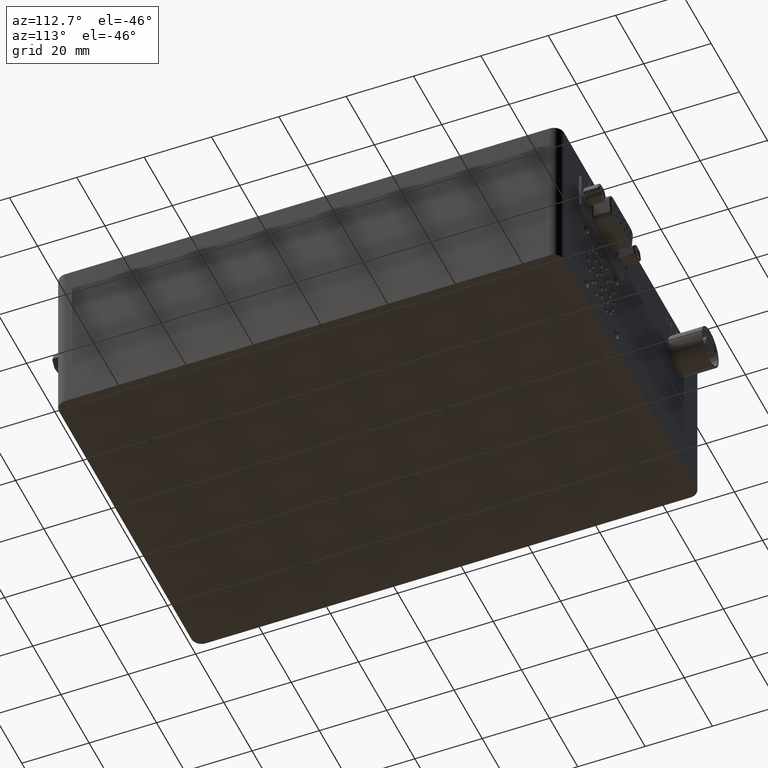
[diagram: clean part render]
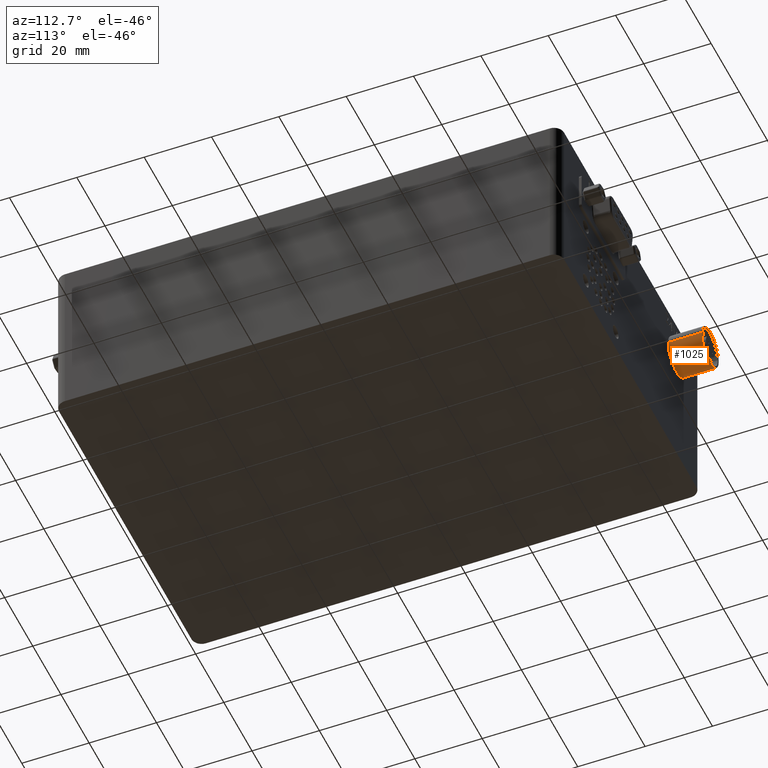
[diagram: same view with one face highlighted and labeled with its STEP entity id]
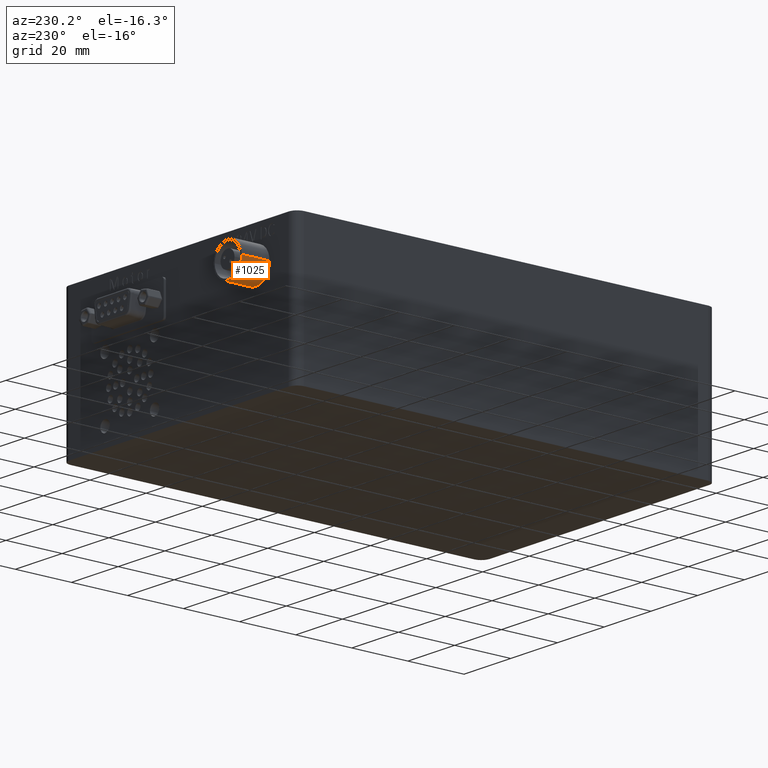
[diagram: same view with one face highlighted and labeled with its STEP entity id]
A machine part, auxiliary view. The second image highlights one B-rep face of the part: STEP entity #1025.
A second angle (auxiliary view) of the same face is appended — the face is thin or edge-on in the first view.
In plain terms, the highlighted cylindrical surface (edge-blend (fillet) strip) has radius 6 mm, axis along (0, -1, 0).
Its self-contained STEP definition (entity closure, byte-faithful):
#1025 = ADVANCED_FACE ( 'NONE', ( #10778 ), #23933, .T. ) ;
#5300 = CARTESIAN_POINT ( 'NONE',  ( 17.16960698378106187, 150.0000000000000000, -12.25554380068579619 ) ) ;
#5926 = CIRCLE ( 'NONE', #31105, 6.000000000000000000 ) ;
#6531 = AXIS2_PLACEMENT_3D ( 'NONE', #5300, #9107, #49385 ) ;
#7058 = AXIS2_PLACEMENT_3D ( 'NONE', #41726, #19544, #42294 ) ;
#7248 = CARTESIAN_POINT ( 'NONE',  ( 11.16960698378106009, 160.0000000000000000, -12.25554380068579619 ) ) ;
#9107 = DIRECTION ( 'NONE',  ( 0.000000000000000000, 1.000000000000000000, 0.000000000000000000 ) ) ;
#9382 = EDGE_CURVE ( 'NONE', #31894, #57725, #37629, .T. ) ;
#9651 = DIRECTION ( 'NONE',  ( -1.000000000000000000, 0.000000000000000000, 0.000000000000000000 ) ) ;
#9901 = ORIENTED_EDGE ( 'NONE', *, *, #24891, .F. ) ;
#10248 = EDGE_CURVE ( 'NONE', #18589, #57725, #22377, .T. ) ;
#10618 = VERTEX_POINT ( 'NONE', #54214 ) ;
#10778 = FACE_OUTER_BOUND ( 'NONE', #30120, .T. ) ;
#13877 = EDGE_CURVE ( 'NONE', #10618, #18589, #36570, .T. ) ;
#16748 = VECTOR ( 'NONE', #55420, 1000.000000000000000 ) ;
#18589 = VERTEX_POINT ( 'NONE', #51949 ) ;
#19544 = DIRECTION ( 'NONE',  ( 0.000000000000000000, -1.000000000000000000, 0.000000000000000000 ) ) ;
#22377 = CIRCLE ( 'NONE', #6531, 6.000000000000000000 ) ;
#23606 = CARTESIAN_POINT ( 'NONE',  ( 11.16960698378106009, 150.0000000000000000, -12.25554380068579619 ) ) ;
#23933 = CYLINDRICAL_SURFACE ( 'NONE', #7058, 5.999999999999998224 ) ;
#24395 = VECTOR ( 'NONE', #57564, 1000.000000000000000 ) ;
#24891 = EDGE_CURVE ( 'NONE', #10618, #31894, #5926, .T. ) ;
#30120 = EDGE_LOOP ( 'NONE', ( #53740, #9901, #57099, #35805 ) ) ;
#31105 = AXIS2_PLACEMENT_3D ( 'NONE', #46128, #32139, #9651 ) ;
#31894 = VERTEX_POINT ( 'NONE', #46850 ) ;
#32139 = DIRECTION ( 'NONE',  ( 0.000000000000000000, 1.000000000000000000, 0.000000000000000000 ) ) ;
#35805 = ORIENTED_EDGE ( 'NONE', *, *, #10248, .T. ) ;
#36570 = LINE ( 'NONE', #54353, #24395 ) ;
#37629 = LINE ( 'NONE', #7248, #16748 ) ;
#41726 = CARTESIAN_POINT ( 'NONE',  ( 17.16960698378106187, 160.0000000000000000, -12.25554380068579619 ) ) ;
#42294 = DIRECTION ( 'NONE',  ( 1.000000000000000000, 0.000000000000000000, 0.000000000000000000 ) ) ;
#46128 = CARTESIAN_POINT ( 'NONE',  ( 17.16960698378106187, 160.0000000000000000, -12.25554380068579619 ) ) ;
#46850 = CARTESIAN_POINT ( 'NONE',  ( 11.16960698378106009, 160.0000000000000000, -12.25554380068579619 ) ) ;
#49385 = DIRECTION ( 'NONE',  ( -1.000000000000000000, 0.000000000000000000, 0.000000000000000000 ) ) ;
#51949 = CARTESIAN_POINT ( 'NONE',  ( 23.16960698378105832, 150.0000000000000000, -12.25554380068579619 ) ) ;
#53740 = ORIENTED_EDGE ( 'NONE', *, *, #9382, .F. ) ;
#54214 = CARTESIAN_POINT ( 'NONE',  ( 23.16960698378105832, 160.0000000000000000, -12.25554380068579619 ) ) ;
#54353 = CARTESIAN_POINT ( 'NONE',  ( 23.16960698378105832, 160.0000000000000000, -12.25554380068579619 ) ) ;
#55420 = DIRECTION ( 'NONE',  ( 0.000000000000000000, -1.000000000000000000, 0.000000000000000000 ) ) ;
#57099 = ORIENTED_EDGE ( 'NONE', *, *, #13877, .T. ) ;
#57564 = DIRECTION ( 'NONE',  ( 0.000000000000000000, -1.000000000000000000, 0.000000000000000000 ) ) ;
#57725 = VERTEX_POINT ( 'NONE', #23606 ) ;